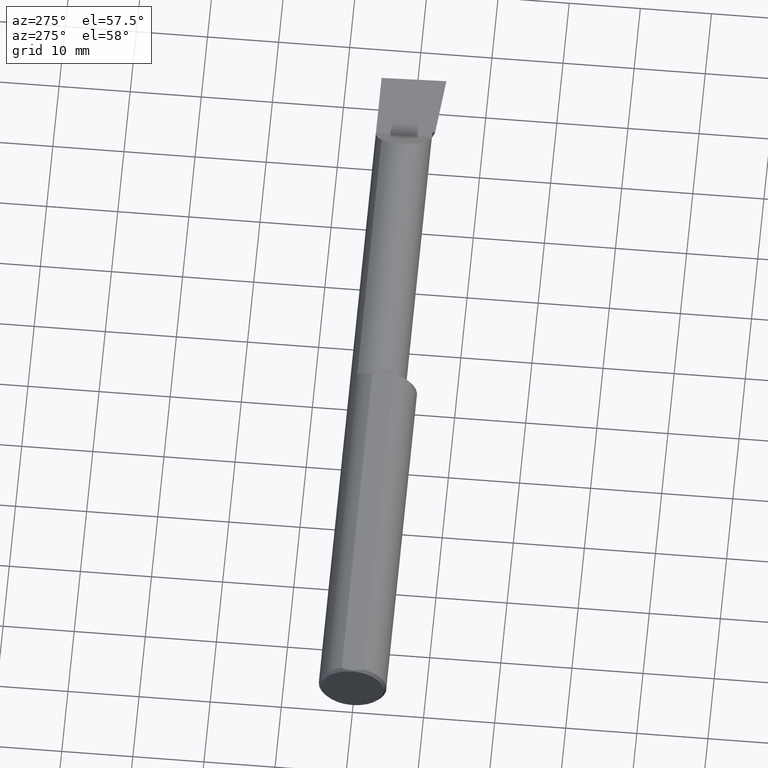
[diagram: clean part render]
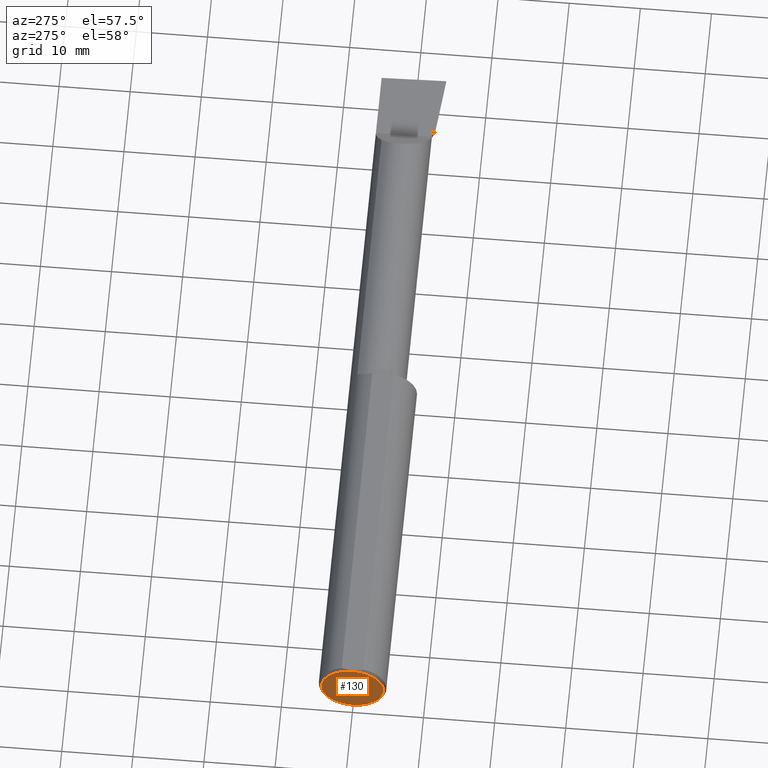
[diagram: same view with one face highlighted and labeled with its STEP entity id]
A machine part, auxiliary view. The second image highlights one B-rep face of the part: STEP entity #130.
In plain terms, the highlighted planar face has unit normal (1, 0, 0).
Its self-contained STEP definition (entity closure, byte-faithful):
#8 = EDGE_CURVE ( 'NONE', #480, #442, #420, .T. ) ;
#17 = FACE_OUTER_BOUND ( 'NONE', #172, .T. ) ;
#58 = ORIENTED_EDGE ( 'NONE', *, *, #105, .T. ) ;
#105 = EDGE_CURVE ( 'NONE', #442, #480, #319, .T. ) ;
#116 = PLANE ( 'NONE',  #156 ) ;
#130 = ADVANCED_FACE ( 'NONE', ( #17 ), #116, .F. ) ;
#156 = AXIS2_PLACEMENT_3D ( 'NONE', #277, #565, #170 ) ;
#170 = DIRECTION ( 'NONE',  ( 0.000000000000000000, 0.000000000000000000, -1.000000000000000000 ) ) ;
#172 = EDGE_LOOP ( 'NONE', ( #191, #58 ) ) ;
#191 = ORIENTED_EDGE ( 'NONE', *, *, #8, .T. ) ;
#213 = DIRECTION ( 'NONE',  ( 0.000000000000000000, 0.000000000000000000, 1.000000000000000000 ) ) ;
#277 = CARTESIAN_POINT ( 'NONE',  ( 0.000000000000000000, 0.000000000000000000, 0.000000000000000000 ) ) ;
#284 = CARTESIAN_POINT ( 'NONE',  ( 0.000000000000000000, 0.000000000000000000, -0.1723499999999996424 ) ) ;
#319 = CIRCLE ( 'NONE', #690, 0.1723499999999996424 ) ;
#326 = DIRECTION ( 'NONE',  ( -1.000000000000000000, -0.000000000000000000, -0.000000000000000000 ) ) ;
#331 = DIRECTION ( 'NONE',  ( 0.000000000000000000, 0.000000000000000000, 1.000000000000000000 ) ) ;
#338 = CARTESIAN_POINT ( 'NONE',  ( 0.000000000000000000, 2.202527268266512578E-17, 0.1723499999999996424 ) ) ;
#380 = AXIS2_PLACEMENT_3D ( 'NONE', #604, #326, #213 ) ;
#382 = CARTESIAN_POINT ( 'NONE',  ( 0.000000000000000000, 0.000000000000000000, 0.000000000000000000 ) ) ;
#420 = CIRCLE ( 'NONE', #380, 0.1723499999999996424 ) ;
#442 = VERTEX_POINT ( 'NONE', #338 ) ;
#449 = DIRECTION ( 'NONE',  ( -1.000000000000000000, -0.000000000000000000, -0.000000000000000000 ) ) ;
#480 = VERTEX_POINT ( 'NONE', #284 ) ;
#565 = DIRECTION ( 'NONE',  ( 1.000000000000000000, 0.000000000000000000, 0.000000000000000000 ) ) ;
#604 = CARTESIAN_POINT ( 'NONE',  ( 0.000000000000000000, 0.000000000000000000, 0.000000000000000000 ) ) ;
#690 = AXIS2_PLACEMENT_3D ( 'NONE', #382, #449, #331 ) ;